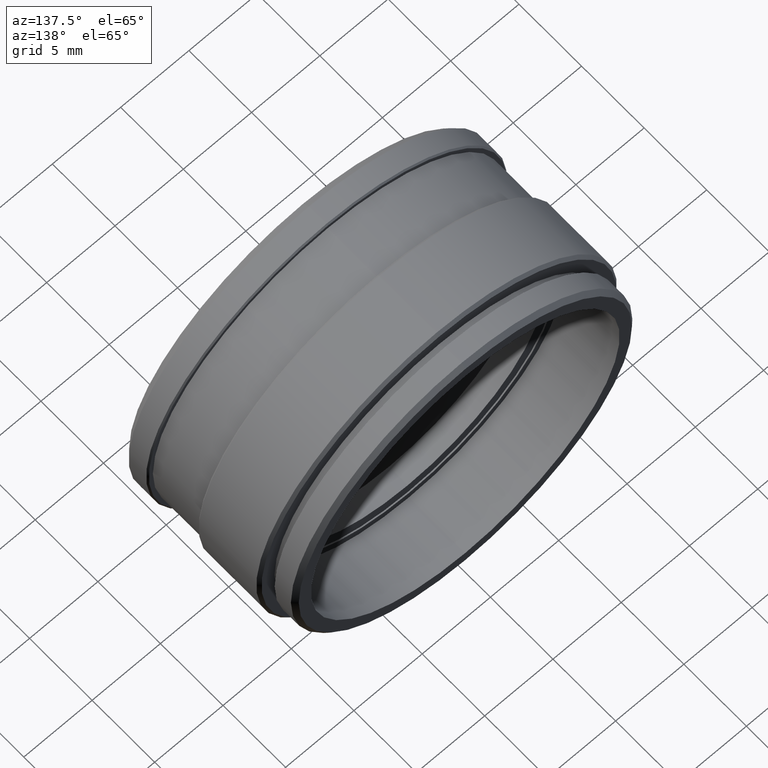
[diagram: clean part render]
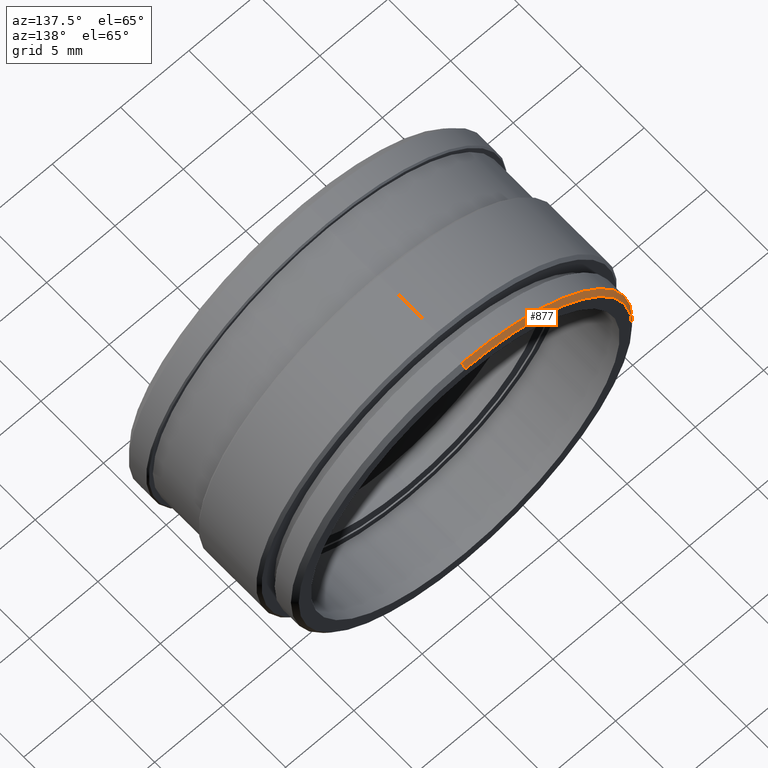
[diagram: same view with one face highlighted and labeled with its STEP entity id]
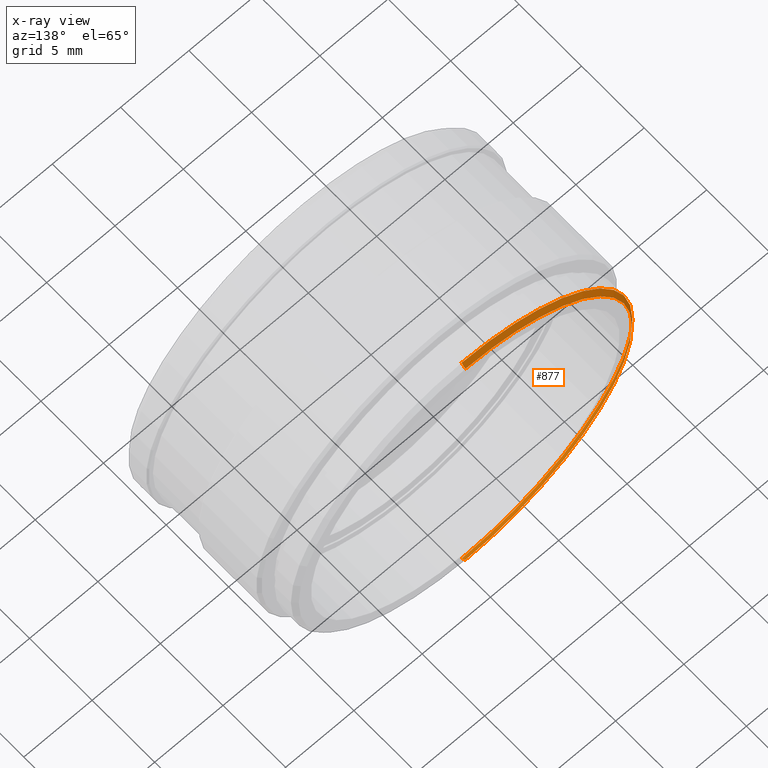
[diagram: x-ray of the same camera — body ghosted, the highlighted face saturated]
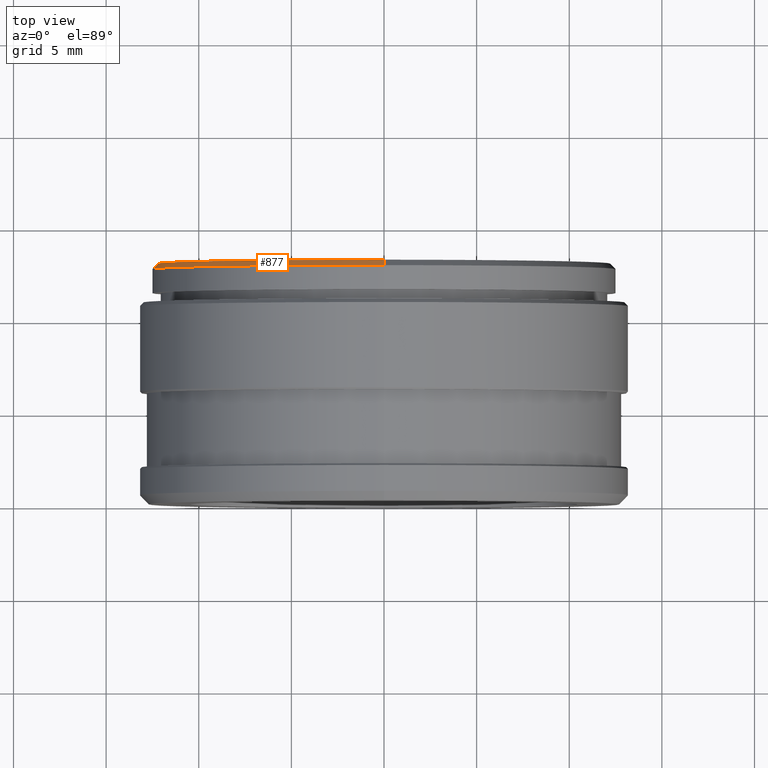
[diagram: same view with one face highlighted and labeled with its STEP entity id]
A machine part, auxiliary view. The second image highlights one B-rep face of the part: STEP entity #877.
The next image is the same camera in x-ray: the body ghosted, the highlighted face saturated — about 0% of this face is hidden behind the body in this view.
A second angle (top view) of the same face is appended — the face is thin or edge-on in the first view.
In plain terms, the highlighted conical surface has half-angle 45 deg.
Its self-contained STEP definition (entity closure, byte-faithful):
#33 = CIRCLE ( 'NONE', #225, 12.20000000000436600 ) ;
#43 = VERTEX_POINT ( 'NONE', #1146 ) ;
#120 = CIRCLE ( 'NONE', #739, 12.50000000000363800 ) ;
#212 = CARTESIAN_POINT ( 'NONE',  ( 0.0000000000000000000, 12.70000000264508500, 0.0000000000000000000 ) ) ;
#219 = VERTEX_POINT ( 'NONE', #826 ) ;
#225 = AXIS2_PLACEMENT_3D ( 'NONE', #1064, #1062, #999 ) ;
#328 = ORIENTED_EDGE ( 'NONE', *, *, #506, .F. ) ;
#373 = DIRECTION ( 'NONE',  ( 0.0000000000000000000, 0.0000000000000000000, -1.000000000000000000 ) ) ;
#404 = ORIENTED_EDGE ( 'NONE', *, *, #954, .F. ) ;
#462 = VERTEX_POINT ( 'NONE', #1036 ) ;
#469 = AXIS2_PLACEMENT_3D ( 'NONE', #212, #908, #925 ) ;
#474 = CARTESIAN_POINT ( 'NONE',  ( 0.0000000000000000000, 12.70000000264508500, 0.0000000000000000000 ) ) ;
#489 = CARTESIAN_POINT ( 'NONE',  ( 0.0000000000000000000, 12.70000000264508500, -12.50000000000363800 ) ) ;
#499 = DIRECTION ( 'NONE',  ( -0.0000000000000000000, -1.000000000000000000, -0.0000000000000000000 ) ) ;
#506 = EDGE_CURVE ( 'NONE', #219, #43, #120, .T. ) ;
#521 = LINE ( 'NONE', #489, #671 ) ;
#573 = VECTOR ( 'NONE', #591, 1000.000000000000100 ) ;
#581 = ORIENTED_EDGE ( 'NONE', *, *, #614, .T. ) ;
#591 = DIRECTION ( 'NONE',  ( 8.659560595065863800E-017, -0.7071067785154971900, 0.7071067838575977300 ) ) ;
#614 = EDGE_CURVE ( 'NONE', #462, #1035, #33, .T. ) ;
#671 = VECTOR ( 'NONE', #980, 1000.000000000000100 ) ;
#731 = CARTESIAN_POINT ( 'NONE',  ( 1.530808498934637000E-015, 12.70000000264508500, 12.50000000000363800 ) ) ;
#739 = AXIS2_PLACEMENT_3D ( 'NONE', #474, #499, #373 ) ;
#760 = FACE_OUTER_BOUND ( 'NONE', #916, .T. ) ;
#808 = LINE ( 'NONE', #731, #573 ) ;
#826 = CARTESIAN_POINT ( 'NONE',  ( 1.530808498934637000E-015, 12.70000000264508500, 12.50000000000363800 ) ) ;
#877 = ADVANCED_FACE ( 'NONE', ( #760 ), #1060, .T. ) ;
#908 = DIRECTION ( 'NONE',  ( -0.0000000000000000000, -1.000000000000000000, -0.0000000000000000000 ) ) ;
#914 = ORIENTED_EDGE ( 'NONE', *, *, #944, .T. ) ;
#916 = EDGE_LOOP ( 'NONE', ( #404, #581, #914, #328 ) ) ;
#925 = DIRECTION ( 'NONE',  ( 0.0000000000000000000, 0.0000000000000000000, -1.000000000000000000 ) ) ;
#944 = EDGE_CURVE ( 'NONE', #1035, #43, #521, .T. ) ;
#954 = EDGE_CURVE ( 'NONE', #462, #219, #808, .T. ) ;
#980 = DIRECTION ( 'NONE',  ( 0.0000000000000000000, -0.7071067785154971900, -0.7071067838575977300 ) ) ;
#999 = DIRECTION ( 'NONE',  ( 0.0000000000000000000, 0.0000000000000000000, -1.000000000000000000 ) ) ;
#1016 = CARTESIAN_POINT ( 'NONE',  ( 0.0000000000000000000, 13.00000000037789700, -12.20000000000436600 ) ) ;
#1035 = VERTEX_POINT ( 'NONE', #1016 ) ;
#1036 = CARTESIAN_POINT ( 'NONE',  ( 1.512438796947471200E-015, 13.00000000037789700, 12.20000000000436600 ) ) ;
#1060 = CONICAL_SURFACE ( 'NONE', #469, 12.50000000000363800, 0.7853981671748838700 ) ;
#1062 = DIRECTION ( 'NONE',  ( -0.0000000000000000000, -1.000000000000000000, -0.0000000000000000000 ) ) ;
#1064 = CARTESIAN_POINT ( 'NONE',  ( 0.0000000000000000000, 13.00000000037789700, 0.0000000000000000000 ) ) ;
#1146 = CARTESIAN_POINT ( 'NONE',  ( 0.0000000000000000000, 12.70000000264508500, -12.50000000000363800 ) ) ;